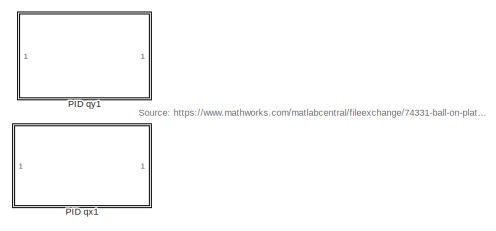
[diagram: root canvas - part 1/3, top center region]
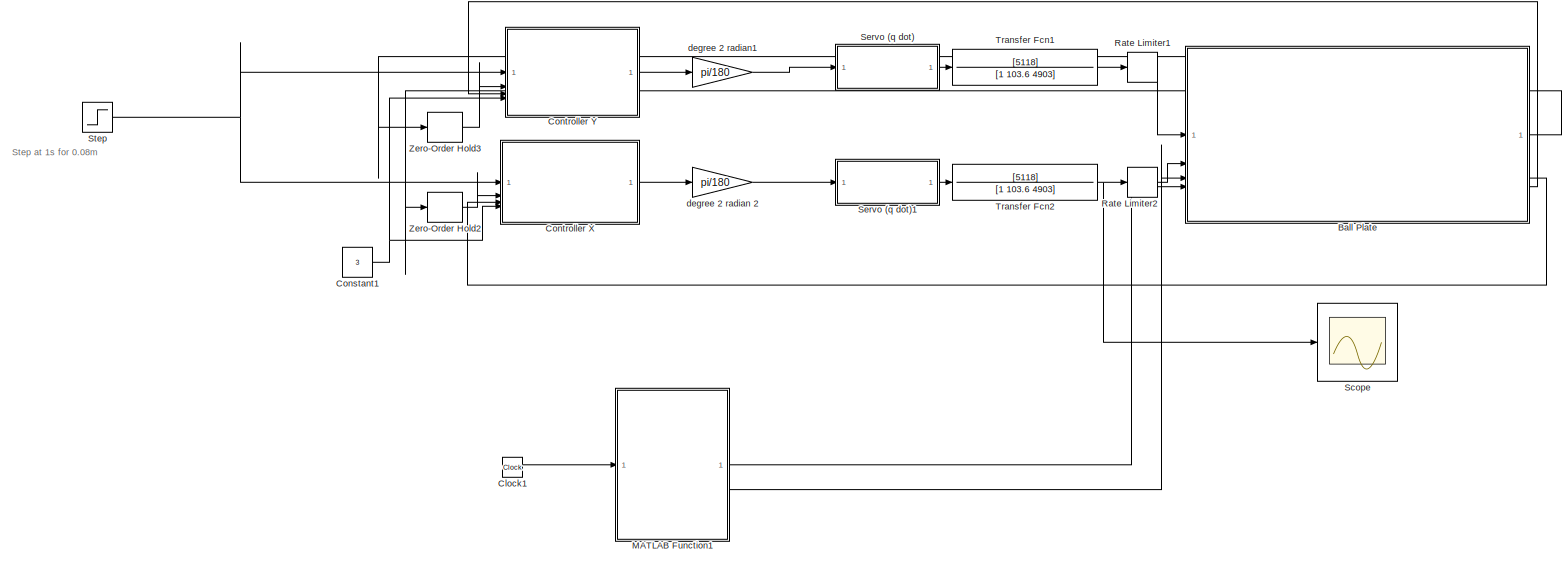
[diagram: root canvas - part 2/3, full width, bottom band]
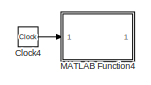
[diagram: root canvas - part 3/3, middle left region]
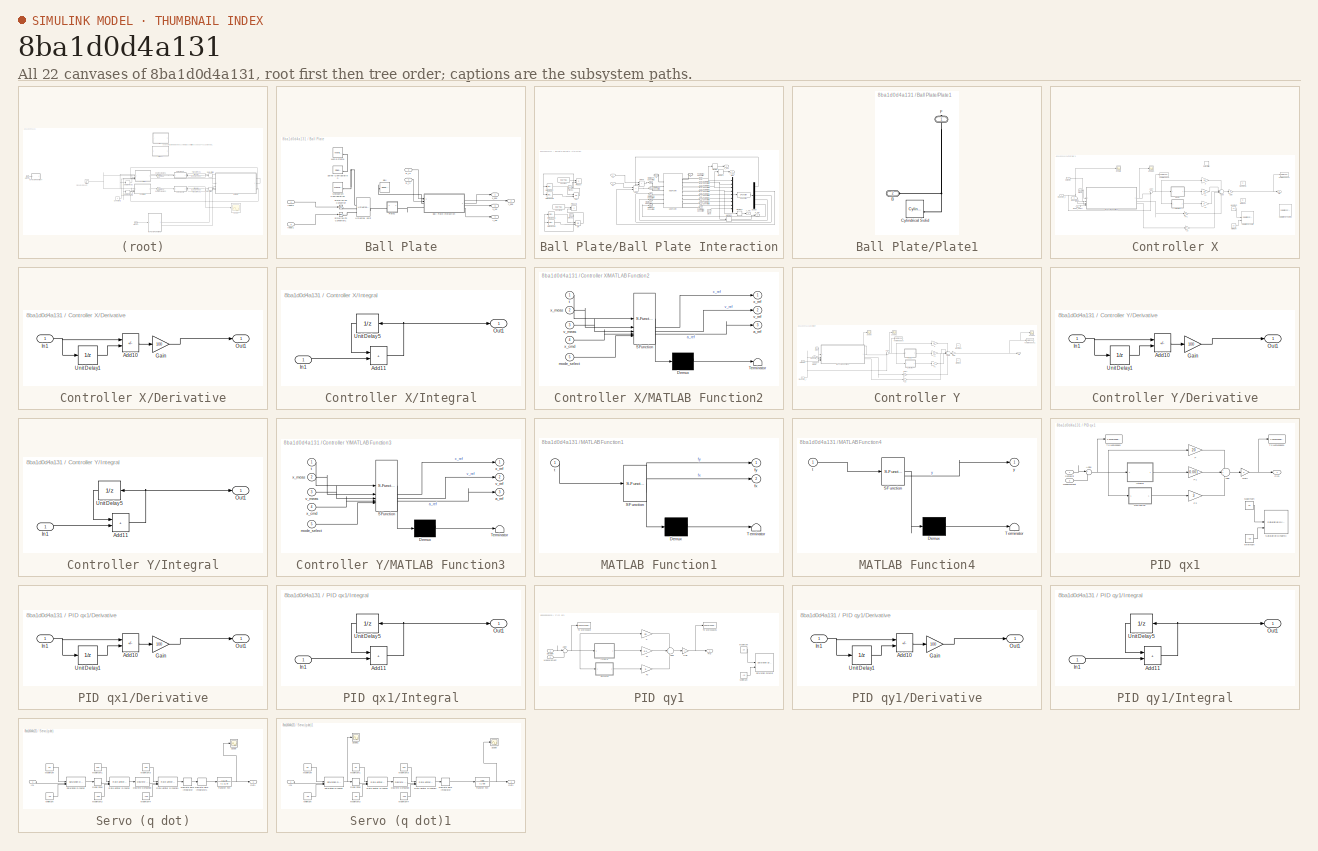
[diagram: thumbnail index - all 22 canvases of the model, root first then tree order]
MODEL slx_8ba1d0d4a131
KIND model
CONFIG AbsTol = auto
CONFIG EnableMultiTasking = off
CONFIG FixedStep = auto
CONFIG MaxStep = 1e-3
CONFIG MinStep = auto
CONFIG RelTol = 1e-3
CONFIG SampleTimeConstraint = Unconstrained
CONFIG SolverName = VariableStepAuto
CONFIG StartTime = 0.0
CONFIG StopTime = 10
BLOCK [SubSystem] Ball Plate
BLOCK [Reference] Ball Plate/Ball  REF=sm_lib/Body Elements/Spherical Solid
  NameLocation = top
  SourceBlock = sm_lib/Body Elements/Spherical Solid
  SourceType = Spherical Solid
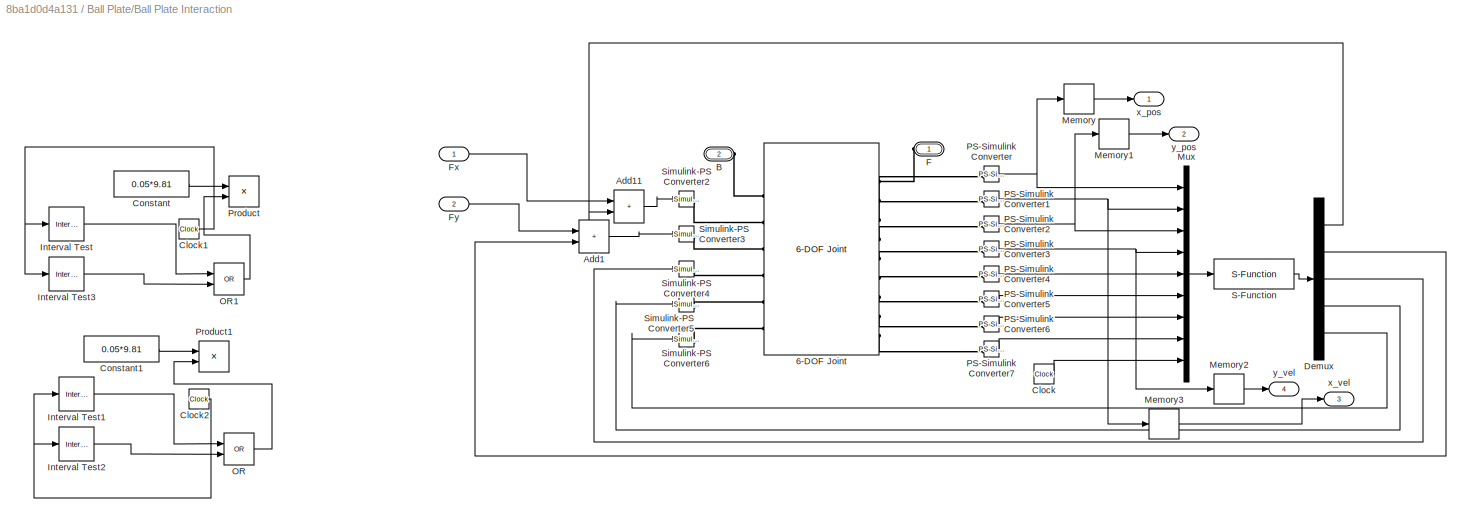
BLOCK [SubSystem] Ball Plate/Ball Plate Interaction
BLOCK [Reference] Ball Plate/Ball Plate Interaction/6-DOF Joint  REF=sm_lib/Joints/6-DOF Joint
  SourceBlock = sm_lib/Joints/6-DOF Joint
  SourceType = 6-DOF Joint
BLOCK [Sum] Ball Plate/Ball Plate Interaction/Add1
  IconShape = rectangular
BLOCK [Sum] Ball Plate/Ball Plate Interaction/Add11
  IconShape = rectangular
BLOCK [PMIOPort] Ball Plate/Ball Plate Interaction/B
  Port = 2
  Side = Left
BLOCK [Clock] Ball Plate/Ball Plate Interaction/Clock
BLOCK [Clock] Ball Plate/Ball Plate Interaction/Clock1
  Commented = on
BLOCK [Clock] Ball Plate/Ball Plate Interaction/Clock2
  Commented = on
BLOCK [Constant] Ball Plate/Ball Plate Interaction/Constant
  Commented = on
  Value = 0.05*9.81
BLOCK [Constant] Ball Plate/Ball Plate Interaction/Constant1
  Commented = on
  Value = 0.05*9.81
BLOCK [Demux] Ball Plate/Ball Plate Interaction/Demux
  Outputs = 5
BLOCK [PMIOPort] Ball Plate/Ball Plate Interaction/F
  NameLocation = top
  Side = Left
BLOCK [Inport] Ball Plate/Ball Plate Interaction/Fx
BLOCK [Inport] Ball Plate/Ball Plate Interaction/Fy
  Port = 2
BLOCK [Reference] Ball Plate/Ball Plate Interaction/Interval Test  REF=simulink/Logic and Bit
Operations/Interval Test
  Commented = on
  SourceBlock = simulink/Logic and Bit\nOperations/Interval Test
  SourceType = Interval Test
BLOCK [Reference] Ball Plate/Ball Plate Interaction/Interval Test1  REF=simulink/Logic and Bit
Operations/Interval Test
  Commented = on
  SourceBlock = simulink/Logic and Bit\nOperations/Interval Test
  SourceType = Interval Test
BLOCK [Reference] Ball Plate/Ball Plate Interaction/Interval Test2  REF=simulink/Logic and Bit
Operations/Interval Test
  Commented = on
  SourceBlock = simulink/Logic and Bit\nOperations/Interval Test
  SourceType = Interval Test
BLOCK [Reference] Ball Plate/Ball Plate Interaction/Interval Test3  REF=simulink/Logic and Bit
Operations/Interval Test
  Commented = on
  SourceBlock = simulink/Logic and Bit\nOperations/Interval Test
  SourceType = Interval Test
BLOCK [Memory] Ball Plate/Ball Plate Interaction/Memory
BLOCK [Memory] Ball Plate/Ball Plate Interaction/Memory1
BLOCK [Memory] Ball Plate/Ball Plate Interaction/Memory2
BLOCK [Memory] Ball Plate/Ball Plate Interaction/Memory3
BLOCK [Mux] Ball Plate/Ball Plate Interaction/Mux
  DisplayOption = bar
  Inputs = 9
BLOCK [Logic] Ball Plate/Ball Plate Interaction/OR
  AllPortsSameDT = off
  Commented = on
  IconShape = distinctive
  Operator = OR
  OutDataTypeStr = boolean
BLOCK [Logic] Ball Plate/Ball Plate Interaction/OR1
  AllPortsSameDT = off
  Commented = on
  IconShape = distinctive
  Operator = OR
  OutDataTypeStr = boolean
BLOCK [Reference] Ball Plate/Ball Plate Interaction/PS-Simulink Converter  REF=nesl_utility/PS-Simulink
Converter
  SourceBlock = nesl_utility/PS-Simulink\nConverter
  SourceType = PS-Simulink\nConverter
BLOCK [Reference] Ball Plate/Ball Plate Interaction/PS-Simulink Converter1  REF=nesl_utility/PS-Simulink
Converter
  SourceBlock = nesl_utility/PS-Simulink\nConverter
  SourceType = PS-Simulink\nConverter
BLOCK [Reference] Ball Plate/Ball Plate Interaction/PS-Simulink Converter2  REF=nesl_utility/PS-Simulink
Converter
  SourceBlock = nesl_utility/PS-Simulink\nConverter
  SourceType = PS-Simulink\nConverter
BLOCK [Reference] Ball Plate/Ball Plate Interaction/PS-Simulink Converter3  REF=nesl_utility/PS-Simulink
Converter
  SourceBlock = nesl_utility/PS-Simulink\nConverter
  SourceType = PS-Simulink\nConverter
BLOCK [Reference] Ball Plate/Ball Plate Interaction/PS-Simulink Converter4  REF=nesl_utility/PS-Simulink
Converter
  SourceBlock = nesl_utility/PS-Simulink\nConverter
  SourceType = PS-Simulink\nConverter
BLOCK [Reference] Ball Plate/Ball Plate Interaction/PS-Simulink Converter5  REF=nesl_utility/PS-Simulink
Converter
  SourceBlock = nesl_utility/PS-Simulink\nConverter
  SourceType = PS-Simulink\nConverter
BLOCK [Reference] Ball Plate/Ball Plate Interaction/PS-Simulink Converter6  REF=nesl_utility/PS-Simulink
Converter
  SourceBlock = nesl_utility/PS-Simulink\nConverter
  SourceType = PS-Simulink\nConverter
BLOCK [Reference] Ball Plate/Ball Plate Interaction/PS-Simulink Converter7  REF=nesl_utility/PS-Simulink
Converter
  SourceBlock = nesl_utility/PS-Simulink\nConverter
  SourceType = PS-Simulink\nConverter
BLOCK [Product] Ball Plate/Ball Plate Interaction/Product
  Commented = on
BLOCK [Product] Ball Plate/Ball Plate Interaction/Product1
  Commented = on
BLOCK [S-Function] Ball Plate/Ball Plate Interaction/S-Function
  EnableBusSupport = off
  FunctionName = ballplateforces
  Parameters = plateRad, plateThickness, ballRad, spring_k, damp_b, friction_dc, friction_speed_thresh
  SFcnIsStateOwnerBlock = off
  SFunctionDeploymentMode = off
BLOCK [Reference] Ball Plate/Ball Plate Interaction/Simulink-PS Converter2  REF=nesl_utility/Simulink-PS
Converter
  SourceBlock = nesl_utility/Simulink-PS\nConverter
  SourceType = Simulink-PS\nConverter
BLOCK [Reference] Ball Plate/Ball Plate Interaction/Simulink-PS Converter3  REF=nesl_utility/Simulink-PS
Converter
  SourceBlock = nesl_utility/Simulink-PS\nConverter
  SourceType = Simulink-PS\nConverter
BLOCK [Reference] Ball Plate/Ball Plate Interaction/Simulink-PS Converter4  REF=nesl_utility/Simulink-PS
Converter
  SourceBlock = nesl_utility/Simulink-PS\nConverter
  SourceType = Simulink-PS\nConverter
BLOCK [Reference] Ball Plate/Ball Plate Interaction/Simulink-PS Converter5  REF=nesl_utility/Simulink-PS
Converter
  SourceBlock = nesl_utility/Simulink-PS\nConverter
  SourceType = Simulink-PS\nConverter
BLOCK [Reference] Ball Plate/Ball Plate Interaction/Simulink-PS Converter6  REF=nesl_utility/Simulink-PS
Converter
  SourceBlock = nesl_utility/Simulink-PS\nConverter
  SourceType = Simulink-PS\nConverter
BLOCK [Outport] Ball Plate/Ball Plate Interaction/x_pos
  VectorParamsAs1DForOutWhenUnconnected = off
BLOCK [Outport] Ball Plate/Ball Plate Interaction/x_vel
  Port = 3
  VectorParamsAs1DForOutWhenUnconnected = off
BLOCK [Outport] Ball Plate/Ball Plate Interaction/y_pos
  Port = 2
  VectorParamsAs1DForOutWhenUnconnected = off
BLOCK [Outport] Ball Plate/Ball Plate Interaction/y_vel
  Port = 4
  VectorParamsAs1DForOutWhenUnconnected = off
BLOCK [Inport] Ball Plate/D_fx
  Port = 3
BLOCK [Inport] Ball Plate/D_fy
  Port = 4
BLOCK [Reference] Ball Plate/Mechanism Configuration  REF=sm_lib/Utilities/Mechanism
Configuration
  SourceBlock = sm_lib/Utilities/Mechanism\nConfiguration
  SourceType = Mechanism\nConfiguration
BLOCK [SubSystem] Ball Plate/Plate1
BLOCK [PMIOPort] Ball Plate/Plate1/B
  Port = 2
  Side = Left
BLOCK [Reference] Ball Plate/Plate1/Cylindrical Solid  REF=sm_lib/Body Elements/Cylindrical Solid
  SourceBlock = sm_lib/Body Elements/Cylindrical Solid
  SourceType = Cylindrical Solid
BLOCK [PMIOPort] Ball Plate/Plate1/F
  NameLocation = right
  Side = Right
BLOCK [Reference] Ball Plate/Simulink-PS Converter  REF=nesl_utility/Simulink-PS
Converter
  SourceBlock = nesl_utility/Simulink-PS\nConverter
  SourceType = Simulink-PS\nConverter
BLOCK [Reference] Ball Plate/Simulink-PS Converter1  REF=nesl_utility/Simulink-PS
Converter
  SourceBlock = nesl_utility/Simulink-PS\nConverter
  SourceType = Simulink-PS\nConverter
BLOCK [Reference] Ball Plate/Solver Configuration  REF=nesl_utility/Solver
Configuration
  SourceBlock = nesl_utility/Solver\nConfiguration
  SourceType = Solver\nConfiguration
BLOCK [Reference] Ball Plate/Universal Joint  REF=sm_lib/Joints/Universal
Joint
  SourceBlock = sm_lib/Joints/Universal\nJoint
  SourceType = Universal\nJoint
BLOCK [Reference] Ball Plate/World Frame  REF=sm_lib/Frames and
Transforms/World Frame
  SourceBlock = sm_lib/Frames and\nTransforms/World Frame
  SourceType = World Frame
BLOCK [Inport] Ball Plate/input0
BLOCK [Inport] Ball Plate/input1
  Port = 2
BLOCK [Outport] Ball Plate/x_pos
BLOCK [Outport] Ball Plate/x_vel
  Port = 3
  VectorParamsAs1DForOutWhenUnconnected = off
BLOCK [Outport] Ball Plate/y_pos
  Port = 2
BLOCK [Outport] Ball Plate/y_vel
  Port = 4
  VectorParamsAs1DForOutWhenUnconnected = off
BLOCK [Clock] Clock1
BLOCK [Clock] Clock4
  Commented = on
BLOCK [Constant] Constant1
  Value = 3
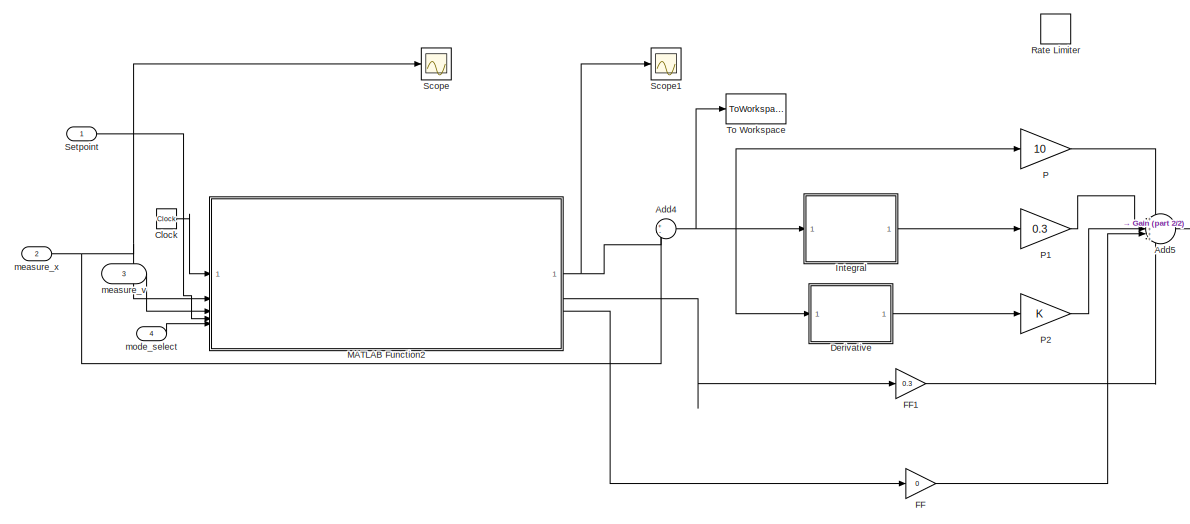
[diagram: Controller X - part 1/2, center side, full height]
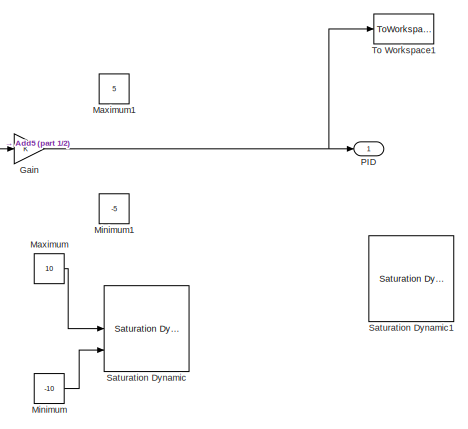
[diagram: Controller X - part 2/2, right side, full height]
BLOCK [SubSystem] Controller X
BLOCK [Sum] Controller X/Add4
  Inputs = +-
BLOCK [Sum] Controller X/Add5
  Inputs = +++++
BLOCK [Clock] Controller X/Clock
BLOCK [SubSystem] Controller X/Derivative
BLOCK [Sum] Controller X/Derivative/Add10
  IconShape = rectangular
  Inputs = +-
BLOCK [Gain] Controller X/Derivative/Gain
  Gain = 100
BLOCK [Inport] Controller X/Derivative/In1
BLOCK [Outport] Controller X/Derivative/Out1
  VectorParamsAs1DForOutWhenUnconnected = off
BLOCK [UnitDelay] Controller X/Derivative/Unit Delay1
  HasFrameUpgradeWarning = on
  SampleTime = -1
BLOCK [Gain] Controller X/FF
  Gain = 0
BLOCK [Gain] Controller X/FF1
  Gain = 0.3
BLOCK [Gain] Controller X/Gain
BLOCK [SubSystem] Controller X/Integral
BLOCK [Sum] Controller X/Integral/Add11
  IconShape = rectangular
BLOCK [Inport] Controller X/Integral/In1
BLOCK [Outport] Controller X/Integral/Out1
  VectorParamsAs1DForOutWhenUnconnected = off
BLOCK [UnitDelay] Controller X/Integral/Unit Delay5
  HasFrameUpgradeWarning = on
  NameLocation = top
  SampleTime = -1
BLOCK [SubSystem] Controller X/MATLAB Function2
  ErrorFcn = Stateflow.Translate.translate
  PermitHierarchicalResolution = ExplicitOnly
  SFBlockType = MATLAB Function
  TreatAsAtomicUnit = on
BLOCK [Demux] Controller X/MATLAB Function2/ Demux 
  Outputs = 1
BLOCK [S-Function] Controller X/MATLAB Function2/ SFunction 
  EnableBusSupport = off
  FunctionName = sf_sfun
  PortCounts = [5 4]
  SFcnIsStateOwnerBlock = off
  SFunctionDeploymentMode = off
  Tag = Stateflow S-Function 3
BLOCK [Terminator] Controller X/MATLAB Function2/ Terminator 
BLOCK [Outport] Controller X/MATLAB Function2/a_ref
  Port = 3
BLOCK [Inport] Controller X/MATLAB Function2/mode_select
  Port = 5
BLOCK [Inport] Controller X/MATLAB Function2/t
BLOCK [Inport] Controller X/MATLAB Function2/v_meas
  Port = 3
BLOCK [Outport] Controller X/MATLAB Function2/v_ref
  Port = 2
BLOCK [Inport] Controller X/MATLAB Function2/x_cmd
  Port = 4
BLOCK [Inport] Controller X/MATLAB Function2/x_meas
  Port = 2
BLOCK [Outport] Controller X/MATLAB Function2/x_ref
BLOCK [Constant] Controller X/Maximum
  Commented = on
  Value = 10
BLOCK [Constant] Controller X/Maximum1
  Value = 5
BLOCK [Constant] Controller X/Minimum
  Commented = on
  Value = -10
BLOCK [Constant] Controller X/Minimum1
  Value = -5
BLOCK [Gain] Controller X/P
  Gain = 10
BLOCK [Gain] Controller X/P1
  Gain = 0.3
BLOCK [Gain] Controller X/P2
BLOCK [Outport] Controller X/PID
  VectorParamsAs1DForOutWhenUnconnected = off
BLOCK [RateLimiter] Controller X/Rate Limiter
  FallingSlewLimit = -60
  RisingSlewLimit = 60
  SampleTimeMode = inherited
BLOCK [Reference] Controller X/Saturation Dynamic  REF=simulink/Discontinuities/Saturation
Dynamic
  Commented = on
  SourceBlock = simulink/Discontinuities/Saturation\nDynamic
  SourceType = Saturation Dynamic
BLOCK [Reference] Controller X/Saturation Dynamic1  REF=simulink/Discontinuities/Saturation
Dynamic
  SourceBlock = simulink/Discontinuities/Saturation\nDynamic
  SourceType = Saturation Dynamic
BLOCK [Scope] Controller X/Scope
  ActiveDisplayYMaximum = 0.13328470924227823
  ActiveDisplayYMinimum = 0.051351222979891829
  DataLoggingVariableName = ScopeData3
  Floating = off
  GraphicalSettings = {"Style":{"BackgroundColor":[0.12941176470588237,0.12941176470588237,0.12941176470588237],"AxesColor":[0.07058823529411765,0.07058823529411765,0.07058823529411765],"LabelsColor":[0.8509803921568627,0.8509803921568627,0.8509803921568627],"PreserveColors":false,"Visible":[true],"LineStyle":["-"],"LineWidth":[1.5],"BarWidth":[0.9],"LineColor":["auto"],"LineFaceAlpha":[1],"LineEdgeAlpha":[1],"Marker":...<+1973ch>
  MultipleDisplayCache = [{"MaxYLimMag":10,"MaxYLimReal":0.13328470924227823,"MinYLimMag":0,"MinYLimReal":0.051351222979891829,"PlotAsMagnitudePhase":false,"ShowGrid":true,"ShowLegend":false,"Title":"%<SignalLabel>","YLabel":""}]
  NumInputPorts = 1
  ScopeFrameLocation = window
  WasSavedAsWebScope = on
  WindowPosition = [680.000000,330.000000,560.000000,420.000000,]
BLOCK [Scope] Controller X/Scope1
  ActiveDisplayYMaximum = 0.14029940301981925
  ActiveDisplayYMinimum = 0.038675580695612569
  DataLoggingVariableName = ScopeData5
  Floating = off
  GraphicalSettings = {"AxesScalingProperties":{"AlignXAxis":"Center","AlignYAxis":"Center","AutoScaleXAxisLimits":false,"AxesScaling":"Manual","AxesScalingNumUpdates":10,"ExpandOnly":true,"ScaleAxesLimitsAtStop":false,"XAxisDataRange":100,"YAxisDataRange":80},"DisplayProperties":{"ColorOrder":["auto","auto","auto","auto","auto","auto","auto","auto","auto","auto","auto","auto","auto","auto","auto","auto","auto","auto",...<+2010ch>
  MultipleDisplayCache = [{"MaxYLimMag":10,"MaxYLimReal":0.14029940301981925,"MinYLimMag":0,"MinYLimReal":0.038675580695612569,"PlotAsMagnitudePhase":false,"ShowGrid":true,"ShowLegend":false,"Title":"%<SignalLabel>","YLabel":""}]
  NumInputPorts = 1
  ScopeFrameLocation = window
  WasSavedAsWebScope = on
  WindowPosition = [1119.000000,378.000000,560.000000,420.000000,]
BLOCK [Inport] Controller X/Setpoint
BLOCK [ToWorkspace] Controller X/To Workspace
  FixptAsFi = on
  MaxDataPoints = inf
  SampleTime = 0.1
  SaveFormat = Timeseries
  VariableName = Error_y1
BLOCK [ToWorkspace] Controller X/To Workspace1
  FixptAsFi = on
  MaxDataPoints = inf
  SampleTime = 0.1
  SaveFormat = Timeseries
  VariableName = PID_x
BLOCK [Inport] Controller X/measure_v
  Port = 3
BLOCK [Inport] Controller X/measure_x
  Port = 2
BLOCK [Inport] Controller X/mode_select
  Port = 4
BLOCK [SubSystem] Controller Y
BLOCK [Sum] Controller Y/Add4
  Inputs = +-
BLOCK [Sum] Controller Y/Add5
  Inputs = +++++
BLOCK [Clock] Controller Y/Clock
BLOCK [SubSystem] Controller Y/Derivative
BLOCK [Sum] Controller Y/Derivative/Add10
  IconShape = rectangular
  Inputs = +-
BLOCK [Gain] Controller Y/Derivative/Gain
  Gain = 100
BLOCK [Inport] Controller Y/Derivative/In1
BLOCK [Outport] Controller Y/Derivative/Out1
  VectorParamsAs1DForOutWhenUnconnected = off
BLOCK [UnitDelay] Controller Y/Derivative/Unit Delay1
  HasFrameUpgradeWarning = on
  SampleTime = -1
BLOCK [Gain] Controller Y/FF
  Gain = 0
BLOCK [Gain] Controller Y/Gain
  Gain = -1
BLOCK [Gain] Controller Y/Gain1
  Gain = 0.3
BLOCK [SubSystem] Controller Y/Integral
BLOCK [Sum] Controller Y/Integral/Add11
  IconShape = rectangular
BLOCK [Inport] Controller Y/Integral/In1
BLOCK [Outport] Controller Y/Integral/Out1
  VectorParamsAs1DForOutWhenUnconnected = off
BLOCK [UnitDelay] Controller Y/Integral/Unit Delay5
  HasFrameUpgradeWarning = on
  NameLocation = top
  SampleTime = -1
BLOCK [SubSystem] Controller Y/MATLAB Function3
  ErrorFcn = Stateflow.Translate.translate
  PermitHierarchicalResolution = ExplicitOnly
  SFBlockType = MATLAB Function
  TreatAsAtomicUnit = on
BLOCK [Demux] Controller Y/MATLAB Function3/ Demux 
  Outputs = 1
BLOCK [S-Function] Controller Y/MATLAB Function3/ SFunction 
  EnableBusSupport = off
  FunctionName = sf_sfun
  PortCounts = [5 4]
  SFcnIsStateOwnerBlock = off
  SFunctionDeploymentMode = off
  Tag = Stateflow S-Function 4
BLOCK [Terminator] Controller Y/MATLAB Function3/ Terminator 
BLOCK [Outport] Controller Y/MATLAB Function3/a_ref
  Port = 3
BLOCK [Inport] Controller Y/MATLAB Function3/mode_select
  Port = 5
BLOCK [Inport] Controller Y/MATLAB Function3/t
BLOCK [Inport] Controller Y/MATLAB Function3/v_meas
  Port = 3
BLOCK [Outport] Controller Y/MATLAB Function3/v_ref
  Port = 2
BLOCK [Inport] Controller Y/MATLAB Function3/x_cmd
  Port = 4
BLOCK [Inport] Controller Y/MATLAB Function3/x_meas
  Port = 2
BLOCK [Outport] Controller Y/MATLAB Function3/x_ref
BLOCK [Constant] Controller Y/Maximum
  Value = 5
BLOCK [Constant] Controller Y/Minimum
  Value = -5
BLOCK [Gain] Controller Y/P
  Gain = 10
BLOCK [Gain] Controller Y/P1
  Gain = 0.3
BLOCK [Gain] Controller Y/P2
BLOCK [Outport] Controller Y/PID
  VectorParamsAs1DForOutWhenUnconnected = off
BLOCK [Scope] Controller Y/Scope
  ActiveDisplayYMaximum = 0.24232938623369576
  ActiveDisplayYMinimum = -0.17035413417455214
  DataLogging = on
  DataLoggingSaveFormat = Array
  DataLoggingVariableName = x_reference
  Floating = off
  GraphicalSettings = {"Style":{"BackgroundColor":[0.12941176470588237,0.12941176470588237,0.12941176470588237],"AxesColor":[0.07058823529411765,0.07058823529411765,0.07058823529411765],"LabelsColor":[0.8509803921568627,0.8509803921568627,0.8509803921568627],"PreserveColors":false,"Visible":[true],"LineStyle":["-"],"LineWidth":[1.5],"BarWidth":[0.9],"LineColor":["auto"],"LineFaceAlpha":[1],"LineEdgeAlpha":[1],"Marker":...<+2001ch>
  MultipleDisplayCache = [{"MaxYLimMag":10,"MaxYLimReal":0.24232938623369576,"MinYLimMag":0,"MinYLimReal":-0.17035413417455214,"PlotAsMagnitudePhase":false,"ShowGrid":true,"ShowLegend":false,"Title":"%<SignalLabel>","YLabel":""}]
  NumInputPorts = 1
  ScopeFrameLocation = window
  WasSavedAsWebScope = on
  WindowPosition = [489.000000,318.000000,560.000000,420.000000,]
BLOCK [Scope] Controller Y/Scope1
  ActiveDisplayYMaximum = 0.10523345024612893
  ActiveDisplayYMinimum = -0.14811843245035317
  DataLogging = on
  DataLoggingSaveFormat = Array
  DataLoggingVariableName = x_error
  Floating = off
  GraphicalSettings = {"Style":{"BackgroundColor":[0.12941176470588237,0.12941176470588237,0.12941176470588237],"AxesColor":[0.07058823529411765,0.07058823529411765,0.07058823529411765],"LabelsColor":[0.8509803921568627,0.8509803921568627,0.8509803921568627],"PreserveColors":false,"Visible":[true],"LineStyle":["-"],"LineWidth":[1.5],"BarWidth":[0.9],"LineColor":["auto"],"LineFaceAlpha":[1],"LineEdgeAlpha":[1],"Marker":...<+1965ch>
  MultipleDisplayCache = [{"MaxYLimMag":10,"MaxYLimReal":0.10523345024612893,"MinYLimMag":0,"MinYLimReal":-0.14811843245035317,"PlotAsMagnitudePhase":false,"ShowGrid":true,"ShowLegend":false,"Title":"%<SignalLabel>","YLabel":""}]
  NumInputPorts = 1
  ScopeFrameLocation = window
  WasSavedAsWebScope = on
  WindowPosition = [489.000000,318.000000,560.000000,513.000000,]
BLOCK [Scope] Controller Y/Scope2
  ActiveDisplayYMaximum = 5.67993842410271
  ActiveDisplayYMinimum = -7.83645910169448
  DataLogging = on
  DataLoggingSaveFormat = Array
  DataLoggingVariableName = x_u
  Floating = off
  GraphicalSettings = {"Style":{"BackgroundColor":[0.12941176470588237,0.12941176470588237,0.12941176470588237],"AxesColor":[0.07058823529411765,0.07058823529411765,0.07058823529411765],"LabelsColor":[0.8509803921568627,0.8509803921568627,0.8509803921568627],"PreserveColors":false,"Visible":[true],"LineStyle":["-"],"LineWidth":[1.5],"BarWidth":[0.9],"LineColor":["auto"],"LineFaceAlpha":[1],"LineEdgeAlpha":[1],"Marker":...<+1953ch>
  MultipleDisplayCache = [{"MaxYLimMag":10,"MaxYLimReal":5.67993842410271,"MinYLimMag":0,"MinYLimReal":-7.83645910169448,"PlotAsMagnitudePhase":false,"ShowGrid":true,"ShowLegend":false,"Title":"%<SignalLabel>","YLabel":""}]
  NumInputPorts = 1
  ScopeFrameLocation = window
  WasSavedAsWebScope = on
  WindowPosition = [489.000000,318.000000,560.000000,420.000000,]
BLOCK [Inport] Controller Y/Setpoint
BLOCK [ToWorkspace] Controller Y/To Workspace
  FixptAsFi = on
  MaxDataPoints = inf
  SampleTime = 0.1
  SaveFormat = Timeseries
  VariableName = Error_y
BLOCK [ToWorkspace] Controller Y/To Workspace1
  FixptAsFi = on
  MaxDataPoints = inf
  SampleTime = 0.1
  SaveFormat = Timeseries
  VariableName = PID_y
BLOCK [Inport] Controller Y/measure_v
  Port = 3
BLOCK [Inport] Controller Y/measure_y
  Port = 2
BLOCK [Inport] Controller Y/mode
  Port = 4
BLOCK [SubSystem] MATLAB Function1
  ErrorFcn = Stateflow.Translate.translate
  PermitHierarchicalResolution = ExplicitOnly
  SFBlockType = MATLAB Function
  TreatAsAtomicUnit = on
BLOCK [Demux] MATLAB Function1/ Demux 
  Outputs = 1
BLOCK [S-Function] MATLAB Function1/ SFunction 
  EnableBusSupport = off
  FunctionName = sf_sfun
  Parameters = Fx,Fy,dur,g,t_on
  PortCounts = [1 3]
  SFcnIsStateOwnerBlock = off
  SFunctionDeploymentMode = off
  Tag = Stateflow S-Function 1
BLOCK [Terminator] MATLAB Function1/ Terminator 
BLOCK [Outport] MATLAB Function1/fx
  Port = 2
BLOCK [Outport] MATLAB Function1/fy
BLOCK [Inport] MATLAB Function1/t
BLOCK [SubSystem] MATLAB Function4
  Commented = on
  ErrorFcn = Stateflow.Translate.translate
  PermitHierarchicalResolution = ExplicitOnly
  SFBlockType = MATLAB Function
  TreatAsAtomicUnit = on
BLOCK [Demux] MATLAB Function4/ Demux 
  Outputs = 1
BLOCK [S-Function] MATLAB Function4/ SFunction 
  EnableBusSupport = off
  FunctionName = sf_sfun
  PortCounts = [1 2]
  SFcnIsStateOwnerBlock = off
  SFunctionDeploymentMode = off
  Tag = Stateflow S-Function 5
BLOCK [Terminator] MATLAB Function4/ Terminator 
BLOCK [Inport] MATLAB Function4/t
BLOCK [Outport] MATLAB Function4/y
BLOCK [SubSystem] PID qx1
  Commented = on
BLOCK [Sum] PID qx1/Add4
  Inputs = +-
BLOCK [Sum] PID qx1/Add5
  Inputs = +++
BLOCK [SubSystem] PID qx1/Derivative
BLOCK [Sum] PID qx1/Derivative/Add10
  IconShape = rectangular
  Inputs = +-
BLOCK [Gain] PID qx1/Derivative/Gain
  Gain = 100
BLOCK [Inport] PID qx1/Derivative/In1
BLOCK [Outport] PID qx1/Derivative/Out1
  VectorParamsAs1DForOutWhenUnconnected = off
BLOCK [UnitDelay] PID qx1/Derivative/Unit Delay1
  HasFrameUpgradeWarning = on
  SampleTime = -1
BLOCK [Gain] PID qx1/Gain
BLOCK [SubSystem] PID qx1/Integral
BLOCK [Sum] PID qx1/Integral/Add11
  IconShape = rectangular
BLOCK [Inport] PID qx1/Integral/In1
BLOCK [Outport] PID qx1/Integral/Out1
  VectorParamsAs1DForOutWhenUnconnected = off
BLOCK [UnitDelay] PID qx1/Integral/Unit Delay5
  HasFrameUpgradeWarning = on
  NameLocation = top
  SampleTime = -1
BLOCK [Constant] PID qx1/Maximum
  Commented = on
  Value = 10
BLOCK [Inport] PID qx1/Measurement
  Port = 2
BLOCK [Constant] PID qx1/Minimum
  Commented = on
  Value = -10
BLOCK [Gain] PID qx1/P
  Gain = 20
BLOCK [Gain] PID qx1/P1
  Gain = 0.001
BLOCK [Gain] PID qx1/P2
  Gain = 3
BLOCK [Outport] PID qx1/PID
  VectorParamsAs1DForOutWhenUnconnected = off
BLOCK [Reference] PID qx1/Saturation Dynamic  REF=simulink/Discontinuities/Saturation
Dynamic
  Commented = on
  SourceBlock = simulink/Discontinuities/Saturation\nDynamic
  SourceType = Saturation Dynamic
BLOCK [Inport] PID qx1/Setpoint
BLOCK [ToWorkspace] PID qx1/To Workspace
  FixptAsFi = on
  MaxDataPoints = inf
  SampleTime = 0.1
  SaveFormat = Timeseries
  VariableName = Error_y1
BLOCK [ToWorkspace] PID qx1/To Workspace1
  FixptAsFi = on
  MaxDataPoints = inf
  SampleTime = 0.1
  SaveFormat = Timeseries
  VariableName = PID_x
BLOCK [SubSystem] PID qy1
  Commented = on
BLOCK [Sum] PID qy1/Add4
  Inputs = +-
BLOCK [Sum] PID qy1/Add5
  Inputs = +++
BLOCK [SubSystem] PID qy1/Derivative
BLOCK [Sum] PID qy1/Derivative/Add10
  IconShape = rectangular
  Inputs = +-
BLOCK [Gain] PID qy1/Derivative/Gain
  Gain = 100
BLOCK [Inport] PID qy1/Derivative/In1
BLOCK [Outport] PID qy1/Derivative/Out1
  VectorParamsAs1DForOutWhenUnconnected = off
BLOCK [UnitDelay] PID qy1/Derivative/Unit Delay1
  HasFrameUpgradeWarning = on
  SampleTime = -1
BLOCK [Gain] PID qy1/Gain
  Gain = -1
BLOCK [SubSystem] PID qy1/Integral
BLOCK [Sum] PID qy1/Integral/Add11
  IconShape = rectangular
BLOCK [Inport] PID qy1/Integral/In1
BLOCK [Outport] PID qy1/Integral/Out1
  VectorParamsAs1DForOutWhenUnconnected = off
BLOCK [UnitDelay] PID qy1/Integral/Unit Delay5
  HasFrameUpgradeWarning = on
  NameLocation = top
  SampleTime = -1
BLOCK [Constant] PID qy1/Maximum
  Value = 10
BLOCK [Inport] PID qy1/Measurement
  Port = 2
BLOCK [Constant] PID qy1/Minimum
  Value = -10
BLOCK [Gain] PID qy1/P
  Gain = 20
BLOCK [Gain] PID qy1/P1
  Gain = 0.1
BLOCK [Gain] PID qy1/P2
  Gain = 3
BLOCK [Outport] PID qy1/PID
  VectorParamsAs1DForOutWhenUnconnected = off
BLOCK [Reference] PID qy1/Saturation Dynamic  REF=simulink/Discontinuities/Saturation
Dynamic
  Commented = on
  SourceBlock = simulink/Discontinuities/Saturation\nDynamic
  SourceType = Saturation Dynamic
BLOCK [Inport] PID qy1/Setpoint
BLOCK [ToWorkspace] PID qy1/To Workspace
  FixptAsFi = on
  MaxDataPoints = inf
  SampleTime = 0.1
  SaveFormat = Timeseries
  VariableName = Error_y
BLOCK [ToWorkspace] PID qy1/To Workspace1
  FixptAsFi = on
  MaxDataPoints = inf
  SampleTime = 0.1
  SaveFormat = Timeseries
  VariableName = PID_y
BLOCK [RateLimiter] Rate Limiter1
  FallingSlewLimit = -3
  RisingSlewLimit = 3
  SampleTimeMode = inherited
BLOCK [RateLimiter] Rate Limiter2
  FallingSlewLimit = -3
  RisingSlewLimit = 3
  SampleTimeMode = inherited
BLOCK [Scope] Scope
  ActiveDisplayYMaximum = 0.26706750837273141
  ActiveDisplayYMinimum = -0.068558369519195889
  DataLoggingVariableName = ScopeData8
  Floating = off
  GraphicalSettings = {"Style":{"BackgroundColor":[0.12941176470588237,0.12941176470588237,0.12941176470588237],"AxesColor":[0.07058823529411765,0.07058823529411765,0.07058823529411765],"LabelsColor":[0.8509803921568627,0.8509803921568627,0.8509803921568627],"PreserveColors":false,"Visible":[true],"LineStyle":["-"],"LineWidth":[1.5],"BarWidth":[0.9],"LineColor":["auto"],"LineFaceAlpha":[1],"LineEdgeAlpha":[1],"Marker":...<+1908ch>
  MultipleDisplayCache = [{"MaxYLimMag":0.26706750837273141,"MaxYLimReal":0.26706750837273141,"MinYLimMag":0,"MinYLimReal":-0.068558369519195889,"PlotAsMagnitudePhase":false,"ShowGrid":true,"ShowLegend":false,"Title":"%<SignalLabel>","YLabel":""}]
  NumInputPorts = 1
  ScopeFrameLocation = window
  WasSavedAsWebScope = on
  WindowPosition = [680.000000,330.000000,560.000000,420.000000,]
BLOCK [SubSystem] Servo (q dot)
  Commented = through
BLOCK [DeadZone] Servo (q dot)/Dead Zone
  LowerValue = -0.005
  UpperValue = 0.005
BLOCK [Reference] Servo (q dot)/Discrete Derivative  REF=simulink/Discrete/Discrete Derivative
  SourceBlock = simulink/Discrete/Discrete Derivative
  SourceType = Discrete Derivative
BLOCK [DiscreteIntegrator] Servo (q dot)/Discrete-Time Integrator
  ICPrevOutput = DiscIntNeverNeededParam
  ICPrevScaledInput = DiscIntNeverNeededParam
  InitialConditionSetting = Auto
  SampleTime = -1
BLOCK [DiscreteIntegrator] Servo (q dot)/Discrete-Time Integrator1
  ICPrevOutput = DiscIntNeverNeededParam
  ICPrevScaledInput = DiscIntNeverNeededParam
  InitialConditionSetting = Auto
  SampleTime = -1
BLOCK [Inport] Servo (q dot)/In1
BLOCK [Constant] Servo (q dot)/Maximum
  Value = 0.3
BLOCK [Constant] Servo (q dot)/Maximum1
  Value = 20.9
BLOCK [Constant] Servo (q dot)/Maximum2
  Value = -20.9
BLOCK [Constant] Servo (q dot)/Maximum3
  Value = 200
BLOCK [Constant] Servo (q dot)/Maximum4
  Value = -200
BLOCK [Constant] Servo (q dot)/Minimum
  Value = -0.3
BLOCK [Outport] Servo (q dot)/Out1
BLOCK [Reference] Servo (q dot)/Rate Limiter Dynamic  REF=simulink/Discontinuities/Rate Limiter
Dynamic
  SourceBlock = simulink/Discontinuities/Rate Limiter\nDynamic
  SourceType = Rate Limiter Dynamic
BLOCK [Reference] Servo (q dot)/Rate Limiter Dynamic1  REF=simulink/Discontinuities/Rate Limiter
Dynamic
  SourceBlock = simulink/Discontinuities/Rate Limiter\nDynamic
  SourceType = Rate Limiter Dynamic
BLOCK [Reference] Servo (q dot)/Saturation Dynamic  REF=simulink/Discontinuities/Saturation
Dynamic
  SourceBlock = simulink/Discontinuities/Saturation\nDynamic
  SourceType = Saturation Dynamic
BLOCK [Scope] Servo (q dot)/Scope
  ActiveDisplayYMaximum = 1
  ActiveDisplayYMinimum = -1
  Floating = off
  GraphicalSettings = {"Style":{"BackgroundColor":[0.12941176470588237,0.12941176470588237,0.12941176470588237],"AxesColor":[0.07058823529411765,0.07058823529411765,0.07058823529411765],"LabelsColor":[0.8509803921568627,0.8509803921568627,0.8509803921568627],"PreserveColors":false,"Visible":[true],"LineStyle":["-"],"LineWidth":[1.5],"BarWidth":[0.9],"LineColor":["auto"],"LineFaceAlpha":[1],"LineEdgeAlpha":[1],"Marker":...<+1895ch>
  MultipleDisplayCache = [{"MaxYLimMag":1,"MaxYLimReal":1,"MinYLimMag":0,"MinYLimReal":-1,"PlotAsMagnitudePhase":false,"ShowGrid":true,"ShowLegend":false,"Title":"%<SignalLabel>","YLabel":""}]
  NumInputPorts = 1
  ScopeFrameLocation = window
  WasSavedAsWebScope = on
  WindowPosition = [680.000000,330.000000,560.000000,420.000000,]
BLOCK [TransferFcn] Servo (q dot)/Transfer Fcn
  Denominator = [1 11.5]
  Numerator = [11.5]
BLOCK [SubSystem] Servo (q dot)1
  Commented = through
BLOCK [DeadZone] Servo (q dot)1/Dead Zone
  LowerValue = -0.005
  UpperValue = 0.005
BLOCK [Reference] Servo (q dot)1/Discrete Derivative  REF=simulink/Discrete/Discrete Derivative
  SourceBlock = simulink/Discrete/Discrete Derivative
  SourceType = Discrete Derivative
BLOCK [DiscreteIntegrator] Servo (q dot)1/Discrete-Time Integrator
  ICPrevOutput = DiscIntNeverNeededParam
  ICPrevScaledInput = DiscIntNeverNeededParam
  InitialConditionSetting = Auto
  SampleTime = 0.001
BLOCK [Inport] Servo (q dot)1/In1
BLOCK [Constant] Servo (q dot)1/Maximum
  Value = 0.5
BLOCK [Constant] Servo (q dot)1/Maximum1
  Value = 50
BLOCK [Constant] Servo (q dot)1/Maximum2
  Value = -50
BLOCK [Constant] Servo (q dot)1/Maximum3
  Value = 300
BLOCK [Constant] Servo (q dot)1/Maximum4
  Value = -300
BLOCK [Constant] Servo (q dot)1/Minimum
  Value = -0.5
BLOCK [Outport] Servo (q dot)1/Out1
BLOCK [Reference] Servo (q dot)1/Rate Limiter Dynamic  REF=simulink/Discontinuities/Rate Limiter
Dynamic
  SourceBlock = simulink/Discontinuities/Rate Limiter\nDynamic
  SourceType = Rate Limiter Dynamic
BLOCK [Reference] Servo (q dot)1/Rate Limiter Dynamic1  REF=simulink/Discontinuities/Rate Limiter
Dynamic
  SourceBlock = simulink/Discontinuities/Rate Limiter\nDynamic
  SourceType = Rate Limiter Dynamic
BLOCK [Reference] Servo (q dot)1/Saturation Dynamic  REF=simulink/Discontinuities/Saturation
Dynamic
  SourceBlock = simulink/Discontinuities/Saturation\nDynamic
  SourceType = Saturation Dynamic
BLOCK [Scope] Servo (q dot)1/Scope
  ActiveDisplayYMaximum = 1
  ActiveDisplayYMinimum = -1
  DataLoggingVariableName = ScopeData1
  Floating = off
  GraphicalSettings = {"Style":{"BackgroundColor":[0.12941176470588237,0.12941176470588237,0.12941176470588237],"AxesColor":[0.07058823529411765,0.07058823529411765,0.07058823529411765],"LabelsColor":[0.8509803921568627,0.8509803921568627,0.8509803921568627],"PreserveColors":false,"Visible":[true],"LineStyle":["-"],"LineWidth":[1.5],"BarWidth":[0.9],"LineColor":["auto"],"LineFaceAlpha":[1],"LineEdgeAlpha":[1],"Marker":...<+2020ch>
  MultipleDisplayCache = [{"MaxYLimMag":1,"MaxYLimReal":1,"MinYLimMag":0,"MinYLimReal":-1,"PlotAsMagnitudePhase":false,"ShowGrid":true,"ShowLegend":false,"Title":"%<SignalLabel>","YLabel":""}]
  NumInputPorts = 1
  ScopeFrameLocation = window
  WasSavedAsWebScope = on
  WindowPosition = [1249.000000,334.000000,560.000000,420.000000,]
BLOCK [Scope] Servo (q dot)1/Scope1
  ActiveDisplayYMaximum = 1
  ActiveDisplayYMinimum = -1
  DataLoggingVariableName = ScopeData4
  Floating = off
  GraphicalSettings = {"Style":{"BackgroundColor":[0.12941176470588237,0.12941176470588237,0.12941176470588237],"AxesColor":[0.07058823529411765,0.07058823529411765,0.07058823529411765],"LabelsColor":[0.8509803921568627,0.8509803921568627,0.8509803921568627],"PreserveColors":false,"Visible":[true],"LineStyle":["-"],"LineWidth":[1.5],"BarWidth":[0.9],"LineColor":["auto"],"LineFaceAlpha":[1],"LineEdgeAlpha":[1],"Marker":...<+2032ch>
  MultipleDisplayCache = [{"MaxYLimMag":1,"MaxYLimReal":1,"MinYLimMag":0,"MinYLimReal":-1,"PlotAsMagnitudePhase":false,"ShowGrid":true,"ShowLegend":false,"Title":"%<SignalLabel>","YLabel":""}]
  NumInputPorts = 1
  ScopeFrameLocation = window
  WasSavedAsWebScope = on
  WindowPosition = [680.000000,330.000000,560.000000,420.000000,]
BLOCK [TransferFcn] Servo (q dot)1/Transfer Fcn
  Denominator = [1 50]
  Numerator = [50]
BLOCK [Step] Step
  After = 0.08
  SampleTime = 0
BLOCK [TransferFcn] Transfer Fcn1
  Denominator = [1 103.6 4903]
  Numerator = [5118]
BLOCK [TransferFcn] Transfer Fcn2
  Denominator = [1 103.6 4903]
  Numerator = [5118]
BLOCK [ZeroOrderHold] Zero-Order Hold2
  SampleTime = 0.1
BLOCK [ZeroOrderHold] Zero-Order Hold3
  SampleTime = 0.1
BLOCK [Gain] degree 2 radian 2
  Gain = pi/180
BLOCK [Gain] degree 2 radian1
  Gain = pi/180
ANNOTATION (root): Source: https://www.mathworks.com/matlabcentral/fileexchange/74331-ball-on-plate-simscape-model-control-and-diagnostics
ANNOTATION (root): Step at 1s for 0.08m
LINE Ball Plate/Ball Plate Interaction/Add11:1 -> Ball Plate/Ball Plate Interaction/Simulink-PS Converter2:1
LINE Ball Plate/Ball Plate Interaction/Add1:1 -> Ball Plate/Ball Plate Interaction/Simulink-PS Converter3:1
NET Ball Plate/Ball Plate Interaction/Clock1:1 -> Ball Plate/Ball Plate Interaction/Interval Test3:1, Ball Plate/Ball Plate Interaction/Interval Test:1
NET Ball Plate/Ball Plate Interaction/Clock2:1 -> Ball Plate/Ball Plate Interaction/Interval Test1:1, Ball Plate/Ball Plate Interaction/Interval Test2:1
LINE Ball Plate/Ball Plate Interaction/Clock:1 -> Ball Plate/Ball Plate Interaction/Mux:9
LINE Ball Plate/Ball Plate Interaction/Constant1:1 -> Ball Plate/Ball Plate Interaction/Product1:1
LINE Ball Plate/Ball Plate Interaction/Constant:1 -> Ball Plate/Ball Plate Interaction/Product:1
LINE Ball Plate/Ball Plate Interaction/Demux:1 -> Ball Plate/Ball Plate Interaction/Add11:2
LINE Ball Plate/Ball Plate Interaction/Demux:2 -> Ball Plate/Ball Plate Interaction/Add1:2
LINE Ball Plate/Ball Plate Interaction/Demux:3 -> Ball Plate/Ball Plate Interaction/Simulink-PS Converter4:1
LINE Ball Plate/Ball Plate Interaction/Demux:4 -> Ball Plate/Ball Plate Interaction/Simulink-PS Converter5:1
LINE Ball Plate/Ball Plate Interaction/Demux:5 -> Ball Plate/Ball Plate Interaction/Simulink-PS Converter6:1
LINE Ball Plate/Ball Plate Interaction/Fx:1 -> Ball Plate/Ball Plate Interaction/Add11:1
LINE Ball Plate/Ball Plate Interaction/Fy:1 -> Ball Plate/Ball Plate Interaction/Add1:1
LINE Ball Plate/Ball Plate Interaction/Interval Test1:1 -> Ball Plate/Ball Plate Interaction/OR:1
LINE Ball Plate/Ball Plate Interaction/Interval Test2:1 -> Ball Plate/Ball Plate Interaction/OR:2
LINE Ball Plate/Ball Plate Interaction/Interval Test3:1 -> Ball Plate/Ball Plate Interaction/OR1:2
LINE Ball Plate/Ball Plate Interaction/Interval Test:1 -> Ball Plate/Ball Plate Interaction/OR1:1
LINE Ball Plate/Ball Plate Interaction/Memory1:1 -> Ball Plate/Ball Plate Interaction/y_pos:1
LINE Ball Plate/Ball Plate Interaction/Memory2:1 -> Ball Plate/Ball Plate Interaction/y_vel:1
LINE Ball Plate/Ball Plate Interaction/Memory3:1 -> Ball Plate/Ball Plate Interaction/x_vel:1
LINE Ball Plate/Ball Plate Interaction/Memory:1 -> Ball Plate/Ball Plate Interaction/x_pos:1
LINE Ball Plate/Ball Plate Interaction/Mux:1 -> Ball Plate/Ball Plate Interaction/S-Function:1
LINE Ball Plate/Ball Plate Interaction/OR1:1 -> Ball Plate/Ball Plate Interaction/Product:2
LINE Ball Plate/Ball Plate Interaction/OR:1 -> Ball Plate/Ball Plate Interaction/Product1:2
NET Ball Plate/Ball Plate Interaction/PS-Simulink Converter1:1 -> Ball Plate/Ball Plate Interaction/Memory3:1, Ball Plate/Ball Plate Interaction/Mux:2
NET Ball Plate/Ball Plate Interaction/PS-Simulink Converter2:1 -> Ball Plate/Ball Plate Interaction/Memory1:1, Ball Plate/Ball Plate Interaction/Mux:3
NET Ball Plate/Ball Plate Interaction/PS-Simulink Converter3:1 -> Ball Plate/Ball Plate Interaction/Memory2:1, Ball Plate/Ball Plate Interaction/Mux:4
LINE Ball Plate/Ball Plate Interaction/PS-Simulink Converter4:1 -> Ball Plate/Ball Plate Interaction/Mux:5
LINE Ball Plate/Ball Plate Interaction/PS-Simulink Converter5:1 -> Ball Plate/Ball Plate Interaction/Mux:6
LINE Ball Plate/Ball Plate Interaction/PS-Simulink Converter6:1 -> Ball Plate/Ball Plate Interaction/Mux:7
LINE Ball Plate/Ball Plate Interaction/PS-Simulink Converter7:1 -> Ball Plate/Ball Plate Interaction/Mux:8
NET Ball Plate/Ball Plate Interaction/PS-Simulink Converter:1 -> Ball Plate/Ball Plate Interaction/Memory:1, Ball Plate/Ball Plate Interaction/Mux:1
LINE Ball Plate/Ball Plate Interaction/S-Function:1 -> Ball Plate/Ball Plate Interaction/Demux:1
LINE Ball Plate/Ball Plate Interaction:1 -> Ball Plate/x_pos:1
LINE Ball Plate/Ball Plate Interaction:2 -> Ball Plate/y_pos:1
LINE Ball Plate/Ball Plate Interaction:3 -> Ball Plate/x_vel:1
LINE Ball Plate/Ball Plate Interaction:4 -> Ball Plate/y_vel:1
LINE Ball Plate/D_fx:1 -> Ball Plate/Ball Plate Interaction:1
LINE Ball Plate/D_fy:1 -> Ball Plate/Ball Plate Interaction:2
LINE Ball Plate/input0:1 -> Ball Plate/Simulink-PS Converter:1
LINE Ball Plate/input1:1 -> Ball Plate/Simulink-PS Converter1:1
LINE Ball Plate:1 -> Zero-Order Hold2:1
LINE Ball Plate:2 -> Zero-Order Hold3:1
LINE Ball Plate:3 -> Controller X:3
LINE Ball Plate:4 -> Controller Y:3
LINE Clock1:1 -> MATLAB Function1:1
LINE Clock4:1 -> MATLAB Function4:1
NET Constant1:1 -> Controller X:4, Controller Y:4
NET Controller X/Add4:1 -> Controller X/Derivative:1, Controller X/Integral:1, Controller X/P:1, Controller X/To Workspace:1
LINE Controller X/Add5:1 -> Controller X/Gain:1
LINE Controller X/Clock:1 -> Controller X/MATLAB Function2:1
LINE Controller X/Derivative/Add10:1 -> Controller X/Derivative/Gain:1
LINE Controller X/Derivative/Gain:1 -> Controller X/Derivative/Out1:1
NET Controller X/Derivative/In1:1 -> Controller X/Derivative/Add10:1, Controller X/Derivative/Unit Delay1:1
LINE Controller X/Derivative/Unit Delay1:1 -> Controller X/Derivative/Add10:2
LINE Controller X/Derivative:1 -> Controller X/P2:1
LINE Controller X/FF1:1 -> Controller X/Add5:5
LINE Controller X/FF:1 -> Controller X/Add5:4
NET Controller X/Gain:1 -> Controller X/PID:1, Controller X/To Workspace1:1
NET Controller X/Integral/Add11:1 -> Controller X/Integral/Out1:1, Controller X/Integral/Unit Delay5:1
LINE Controller X/Integral/In1:1 -> Controller X/Integral/Add11:2
LINE Controller X/Integral/Unit Delay5:1 -> Controller X/Integral/Add11:1
LINE Controller X/Integral:1 -> Controller X/P1:1
NET Controller X/MATLAB Function2:1 -> Controller X/Add4:1, Controller X/Scope1:1
LINE Controller X/MATLAB Function2:2 -> Controller X/FF1:1
LINE Controller X/MATLAB Function2:3 -> Controller X/FF:1
LINE Controller X/Maximum:1 -> Controller X/Saturation Dynamic:1
LINE Controller X/Minimum:1 -> Controller X/Saturation Dynamic:3
LINE Controller X/P1:1 -> Controller X/Add5:2
LINE Controller X/P2:1 -> Controller X/Add5:3
LINE Controller X/P:1 -> Controller X/Add5:1
LINE Controller X/Setpoint:1 -> Controller X/MATLAB Function2:4
LINE Controller X/measure_v:1 -> Controller X/MATLAB Function2:3
NET Controller X/measure_x:1 -> Controller X/Add4:2, Controller X/MATLAB Function2:2, Controller X/Scope:1
LINE Controller X/mode_select:1 -> Controller X/MATLAB Function2:5
LINE Controller X:1 -> degree 2 radian 2:1
NET Controller Y/Add4:1 -> Controller Y/Derivative:1, Controller Y/Integral:1, Controller Y/P:1, Controller Y/Scope1:1, Controller Y/To Workspace:1
LINE Controller Y/Add5:1 -> Controller Y/Gain:1
LINE Controller Y/Clock:1 -> Controller Y/MATLAB Function3:1
LINE Controller Y/Derivative/Add10:1 -> Controller Y/Derivative/Gain:1
LINE Controller Y/Derivative/Gain:1 -> Controller Y/Derivative/Out1:1
NET Controller Y/Derivative/In1:1 -> Controller Y/Derivative/Add10:1, Controller Y/Derivative/Unit Delay1:1
LINE Controller Y/Derivative/Unit Delay1:1 -> Controller Y/Derivative/Add10:2
LINE Controller Y/Derivative:1 -> Controller Y/P2:1
LINE Controller Y/FF:1 -> Controller Y/Add5:4
LINE Controller Y/Gain1:1 -> Controller Y/Add5:5
NET Controller Y/Gain:1 -> Controller Y/PID:1, Controller Y/Scope2:1, Controller Y/To Workspace1:1
NET Controller Y/Integral/Add11:1 -> Controller Y/Integral/Out1:1, Controller Y/Integral/Unit Delay5:1
LINE Controller Y/Integral/In1:1 -> Controller Y/Integral/Add11:2
LINE Controller Y/Integral/Unit Delay5:1 -> Controller Y/Integral/Add11:1
LINE Controller Y/Integral:1 -> Controller Y/P1:1
NET Controller Y/MATLAB Function3:1 -> Controller Y/Add4:1, Controller Y/Scope:1
LINE Controller Y/MATLAB Function3:2 -> Controller Y/Gain1:1
LINE Controller Y/MATLAB Function3:3 -> Controller Y/FF:1
LINE Controller Y/P1:1 -> Controller Y/Add5:2
LINE Controller Y/P2:1 -> Controller Y/Add5:3
LINE Controller Y/P:1 -> Controller Y/Add5:1
LINE Controller Y/Setpoint:1 -> Controller Y/MATLAB Function3:4
LINE Controller Y/measure_v:1 -> Controller Y/MATLAB Function3:3
NET Controller Y/measure_y:1 -> Controller Y/Add4:2, Controller Y/MATLAB Function3:2
LINE Controller Y/mode:1 -> Controller Y/MATLAB Function3:5
LINE Controller Y:1 -> degree 2 radian1:1
LINE MATLAB Function1:1 -> Ball Plate:4
LINE MATLAB Function1:2 -> Ball Plate:3
NET PID qx1/Add4:1 -> PID qx1/Derivative:1, PID qx1/Integral:1, PID qx1/P:1, PID qx1/To Workspace:1
LINE PID qx1/Add5:1 -> PID qx1/Gain:1
LINE PID qx1/Derivative/Add10:1 -> PID qx1/Derivative/Gain:1
LINE PID qx1/Derivative/Gain:1 -> PID qx1/Derivative/Out1:1
NET PID qx1/Derivative/In1:1 -> PID qx1/Derivative/Add10:1, PID qx1/Derivative/Unit Delay1:1
LINE PID qx1/Derivative/Unit Delay1:1 -> PID qx1/Derivative/Add10:2
LINE PID qx1/Derivative:1 -> PID qx1/P2:1
NET PID qx1/Gain:1 -> PID qx1/PID:1, PID qx1/To Workspace1:1
NET PID qx1/Integral/Add11:1 -> PID qx1/Integral/Out1:1, PID qx1/Integral/Unit Delay5:1
LINE PID qx1/Integral/In1:1 -> PID qx1/Integral/Add11:2
LINE PID qx1/Integral/Unit Delay5:1 -> PID qx1/Integral/Add11:1
LINE PID qx1/Integral:1 -> PID qx1/P1:1
LINE PID qx1/Maximum:1 -> PID qx1/Saturation Dynamic:1
LINE PID qx1/Measurement:1 -> PID qx1/Add4:2
LINE PID qx1/Minimum:1 -> PID qx1/Saturation Dynamic:3
LINE PID qx1/P1:1 -> PID qx1/Add5:2
LINE PID qx1/P2:1 -> PID qx1/Add5:3
LINE PID qx1/P:1 -> PID qx1/Add5:1
LINE PID qx1/Setpoint:1 -> PID qx1/Add4:1
NET PID qy1/Add4:1 -> PID qy1/Derivative:1, PID qy1/Integral:1, PID qy1/P:1, PID qy1/To Workspace:1
LINE PID qy1/Add5:1 -> PID qy1/Gain:1
LINE PID qy1/Derivative/Add10:1 -> PID qy1/Derivative/Gain:1
LINE PID qy1/Derivative/Gain:1 -> PID qy1/Derivative/Out1:1
NET PID qy1/Derivative/In1:1 -> PID qy1/Derivative/Add10:1, PID qy1/Derivative/Unit Delay1:1
LINE PID qy1/Derivative/Unit Delay1:1 -> PID qy1/Derivative/Add10:2
LINE PID qy1/Derivative:1 -> PID qy1/P2:1
NET PID qy1/Gain:1 -> PID qy1/PID:1, PID qy1/To Workspace1:1
NET PID qy1/Integral/Add11:1 -> PID qy1/Integral/Out1:1, PID qy1/Integral/Unit Delay5:1
LINE PID qy1/Integral/In1:1 -> PID qy1/Integral/Add11:2
LINE PID qy1/Integral/Unit Delay5:1 -> PID qy1/Integral/Add11:1
LINE PID qy1/Integral:1 -> PID qy1/P1:1
LINE PID qy1/Maximum:1 -> PID qy1/Saturation Dynamic:1
LINE PID qy1/Measurement:1 -> PID qy1/Add4:2
LINE PID qy1/Minimum:1 -> PID qy1/Saturation Dynamic:3
LINE PID qy1/P1:1 -> PID qy1/Add5:2
LINE PID qy1/P2:1 -> PID qy1/Add5:3
LINE PID qy1/P:1 -> PID qy1/Add5:1
LINE PID qy1/Setpoint:1 -> PID qy1/Add4:1
LINE Rate Limiter1:1 -> Ball Plate:1
LINE Rate Limiter2:1 -> Ball Plate:2
LINE Servo (q dot)/Dead Zone:1 -> Servo (q dot)/Rate Limiter Dynamic:2
LINE Servo (q dot)/Discrete Derivative:1 -> Servo (q dot)/Rate Limiter Dynamic1:2
LINE Servo (q dot)/Discrete-Time Integrator1:1 -> Servo (q dot)/Transfer Fcn:1
LINE Servo (q dot)/Discrete-Time Integrator:1 -> Servo (q dot)/Discrete-Time Integrator1:1
LINE Servo (q dot)/In1:1 -> Servo (q dot)/Saturation Dynamic:2
LINE Servo (q dot)/Maximum1:1 -> Servo (q dot)/Rate Limiter Dynamic:1
LINE Servo (q dot)/Maximum2:1 -> Servo (q dot)/Rate Limiter Dynamic:3
LINE Servo (q dot)/Maximum3:1 -> Servo (q dot)/Rate Limiter Dynamic1:1
LINE Servo (q dot)/Maximum4:1 -> Servo (q dot)/Rate Limiter Dynamic1:3
LINE Servo (q dot)/Maximum:1 -> Servo (q dot)/Saturation Dynamic:1
LINE Servo (q dot)/Minimum:1 -> Servo (q dot)/Saturation Dynamic:3
LINE Servo (q dot)/Rate Limiter Dynamic1:1 -> Servo (q dot)/Discrete-Time Integrator:1
LINE Servo (q dot)/Rate Limiter Dynamic:1 -> Servo (q dot)/Discrete Derivative:1
LINE Servo (q dot)/Saturation Dynamic:1 -> Servo (q dot)/Dead Zone:1
NET Servo (q dot)/Transfer Fcn:1 -> Servo (q dot)/Out1:1, Servo (q dot)/Scope:1
LINE Servo (q dot)1/Dead Zone:1 -> Servo (q dot)1/Rate Limiter Dynamic:2
LINE Servo (q dot)1/Discrete Derivative:1 -> Servo (q dot)1/Rate Limiter Dynamic1:2
LINE Servo (q dot)1/Discrete-Time Integrator:1 -> Servo (q dot)1/Transfer Fcn:1
LINE Servo (q dot)1/In1:1 -> Servo (q dot)1/Saturation Dynamic:2
LINE Servo (q dot)1/Maximum1:1 -> Servo (q dot)1/Rate Limiter Dynamic:1
LINE Servo (q dot)1/Maximum2:1 -> Servo (q dot)1/Rate Limiter Dynamic:3
LINE Servo (q dot)1/Maximum3:1 -> Servo (q dot)1/Rate Limiter Dynamic1:1
LINE Servo (q dot)1/Maximum4:1 -> Servo (q dot)1/Rate Limiter Dynamic1:3
LINE Servo (q dot)1/Maximum:1 -> Servo (q dot)1/Saturation Dynamic:1
LINE Servo (q dot)1/Minimum:1 -> Servo (q dot)1/Saturation Dynamic:3
LINE Servo (q dot)1/Rate Limiter Dynamic1:1 -> Servo (q dot)1/Discrete-Time Integrator:1
LINE Servo (q dot)1/Rate Limiter Dynamic:1 -> Servo (q dot)1/Discrete Derivative:1
NET Servo (q dot)1/Saturation Dynamic:1 -> Servo (q dot)1/Dead Zone:1, Servo (q dot)1/Scope1:1
NET Servo (q dot)1/Transfer Fcn:1 -> Servo (q dot)1/Out1:1, Servo (q dot)1/Scope:1
LINE Servo (q dot)1:1 -> Transfer Fcn2:1
LINE Servo (q dot):1 -> Transfer Fcn1:1
NET Step:1 -> Controller X:1, Controller Y:1
LINE Transfer Fcn1:1 -> Rate Limiter1:1
NET Transfer Fcn2:1 -> Rate Limiter2:1, Scope:1
LINE Zero-Order Hold2:1 -> Controller X:2
LINE Zero-Order Hold3:1 -> Controller Y:2
LINE degree 2 radian 2:1 -> Servo (q dot)1:1
LINE degree 2 radian1:1 -> Servo (q dot):1
PLINE Ball Plate/Ball Plate Interaction/6-DOF Joint:LConn1 -- Ball Plate/Ball Plate Interaction/B:RConn1
PLINE Ball Plate/Ball Plate Interaction/6-DOF Joint:LConn2 -- Ball Plate/Ball Plate Interaction/Simulink-PS Converter2:RConn1
PLINE Ball Plate/Ball Plate Interaction/6-DOF Joint:LConn3 -- Ball Plate/Ball Plate Interaction/Simulink-PS Converter3:RConn1
PLINE Ball Plate/Ball Plate Interaction/6-DOF Joint:LConn4 -- Ball Plate/Ball Plate Interaction/Simulink-PS Converter4:RConn1
PLINE Ball Plate/Ball Plate Interaction/6-DOF Joint:LConn5 -- Ball Plate/Ball Plate Interaction/Simulink-PS Converter5:RConn1
PLINE Ball Plate/Ball Plate Interaction/6-DOF Joint:LConn6 -- Ball Plate/Ball Plate Interaction/Simulink-PS Converter6:RConn1
PLINE Ball Plate/Ball Plate Interaction/6-DOF Joint:RConn1 -- Ball Plate/Ball Plate Interaction/F:RConn1
PLINE Ball Plate/Ball Plate Interaction/6-DOF Joint:RConn2 -- Ball Plate/Ball Plate Interaction/PS-Simulink Converter:LConn1
PLINE Ball Plate/Ball Plate Interaction/6-DOF Joint:RConn3 -- Ball Plate/Ball Plate Interaction/PS-Simulink Converter1:LConn1
PLINE Ball Plate/Ball Plate Interaction/6-DOF Joint:RConn4 -- Ball Plate/Ball Plate Interaction/PS-Simulink Converter2:LConn1
PLINE Ball Plate/Ball Plate Interaction/6-DOF Joint:RConn5 -- Ball Plate/Ball Plate Interaction/PS-Simulink Converter3:LConn1
PLINE Ball Plate/Ball Plate Interaction/6-DOF Joint:RConn6 -- Ball Plate/Ball Plate Interaction/PS-Simulink Converter4:LConn1
PLINE Ball Plate/Ball Plate Interaction/6-DOF Joint:RConn7 -- Ball Plate/Ball Plate Interaction/PS-Simulink Converter5:LConn1
PLINE Ball Plate/Ball Plate Interaction/6-DOF Joint:RConn8 -- Ball Plate/Ball Plate Interaction/PS-Simulink Converter6:LConn1
PLINE Ball Plate/Ball Plate Interaction/6-DOF Joint:RConn9 -- Ball Plate/Ball Plate Interaction/PS-Simulink Converter7:LConn1
PLINE Ball Plate/Ball Plate Interaction:LConn1 -- Ball Plate/Ball:RConn1
PLINE Ball Plate/Ball Plate Interaction:LConn2 -- Ball Plate/Plate1:RConn1
PNET net1: Ball Plate/Mechanism Configuration:RConn1 -- Ball Plate/Solver Configuration:RConn1 -- Ball Plate/Universal Joint:LConn1 -- Ball Plate/World Frame:RConn1
PNET net2: Ball Plate/Plate1/B:RConn1 -- Ball Plate/Plate1/Cylindrical Solid:RConn1 -- Ball Plate/Plate1/F:RConn1
PLINE Ball Plate/Plate1:LConn1 -- Ball Plate/Universal Joint:RConn1
PLINE Ball Plate/Simulink-PS Converter1:RConn1 -- Ball Plate/Universal Joint:LConn3
PLINE Ball Plate/Simulink-PS Converter:RConn1 -- Ball Plate/Universal Joint:LConn2
note: NET lines group one-source signal fan-out (src -> all destinations, sorted); 1:1 wires keep LINE; PNET lines group multi-terminal physical nets as a canonical sorted terminal list (undirected conserving connections); 2-terminal nets keep the pairwise PLINE form
CHART MATLAB Function1 states=1 transitions=1
  STATE_LABEL 'eML_blk_kernel()'
  STATE_LABEL 'SCRIPT:\nfunction [fy, fx] = disturbance(t, Fx, Fy, g, dur, t_on)\nfx = 0;\nfy = 0;\nif t >= t_on && t < t_on + dur\n    fx = Fx * g;\n    fy = Fy * g;\nend\n'
CHART Controller X/MATLAB Function2 states=1 transitions=1
  STATE_LABEL 'eML_blk_kernel()'
  STATE_LABEL 'SCRIPT:\nfunction [x_ref, v_ref, a_ref] = traj_1axis(t, x_meas, v_meas, x_cmd, mode_select)\n% Bedi-style trajectory for one axis with multiple operating modes.\n%\n%   mode_select:\n%       1 = direct step command (no trajectory, x_ref = x_cmd)\n%       2 = one-shot trajectory (plan once when command changes / idle)\n%       3 = trajectory with limited periodic replanning (only when diverging)\n%\n% Input...<+3608ch>'
CHART Controller Y/MATLAB Function3 states=1 transitions=1
  STATE_LABEL 'eML_blk_kernel()'
  STATE_LABEL 'SCRIPT:\nfunction [x_ref, v_ref, a_ref] = traj_1axis(t, x_meas, v_meas, x_cmd, mode_select)\n% Bedi-style trajectory for one axis with multiple operating modes.\n%\n%   mode_select:\n%       1 = direct step command (no trajectory, x_ref = x_cmd)\n%       2 = one-shot trajectory (plan once when command changes / idle)\n%       3 = trajectory with limited periodic replanning (only when diverging)\n%\n% Input...<+3608ch>'
CHART MATLAB Function4 states=1 transitions=1
  STATE_LABEL 'eML_blk_kernel()'
  STATE_LABEL 'SCRIPT:\nfunction y = staircase(t)\nstepSize = 0.01;\nnumSteps = 10;\nstepInterval = 0.3;  % 1 second each\n\nk = floor(t / stepInterval);\nk = min(k, numSteps);   % limit to last step\n\ny = k * stepSize;\nfunction y = fcn(u)\n\ny = u;\n'
CHART  states=0 transitions=0
CHART  states=0 transitions=0
CHART  states=0 transitions=0
CHART  states=0 transitions=0
